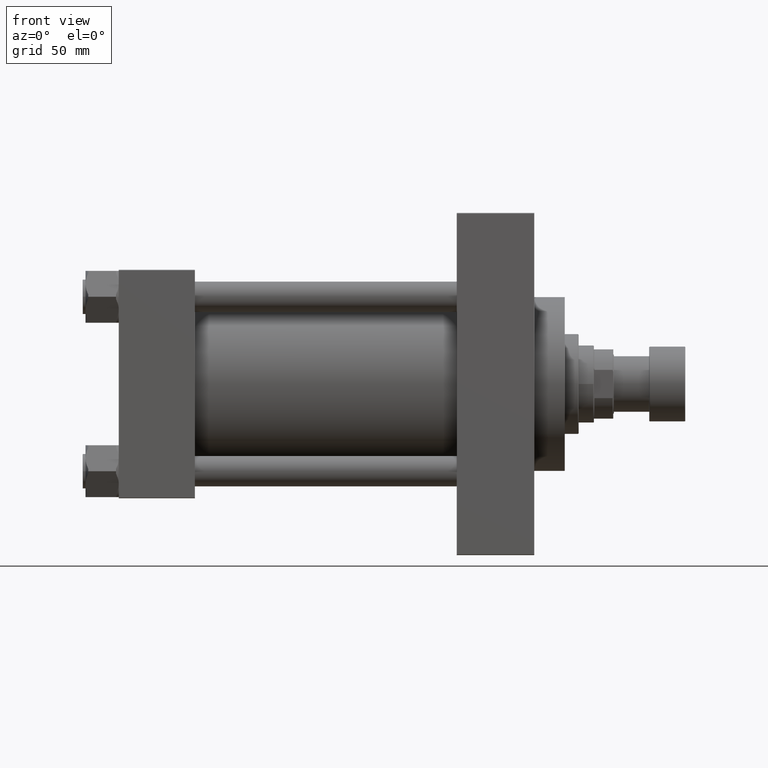
[diagram: clean part render]
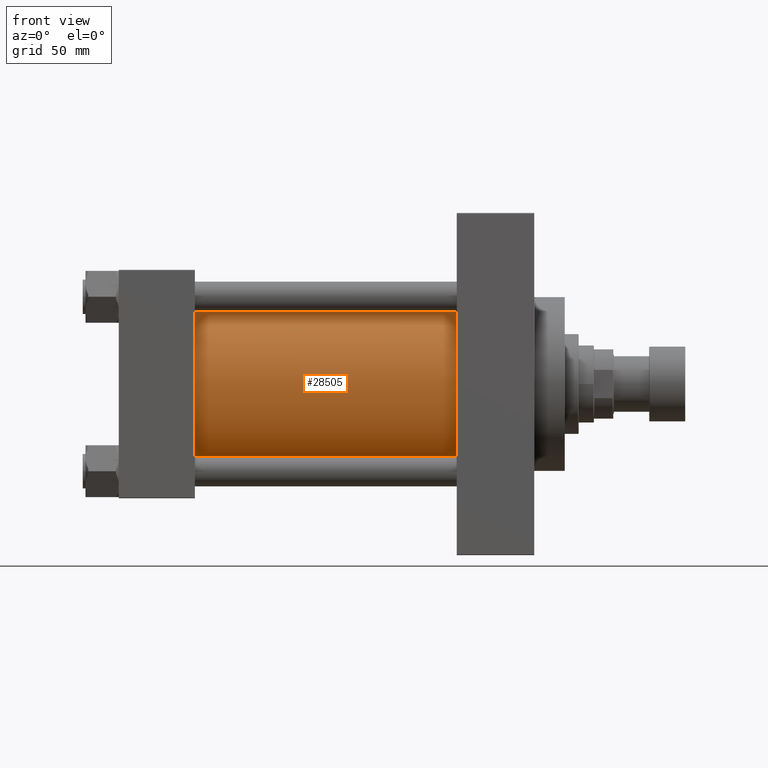
[diagram: same view with one face highlighted and labeled with its STEP entity id]
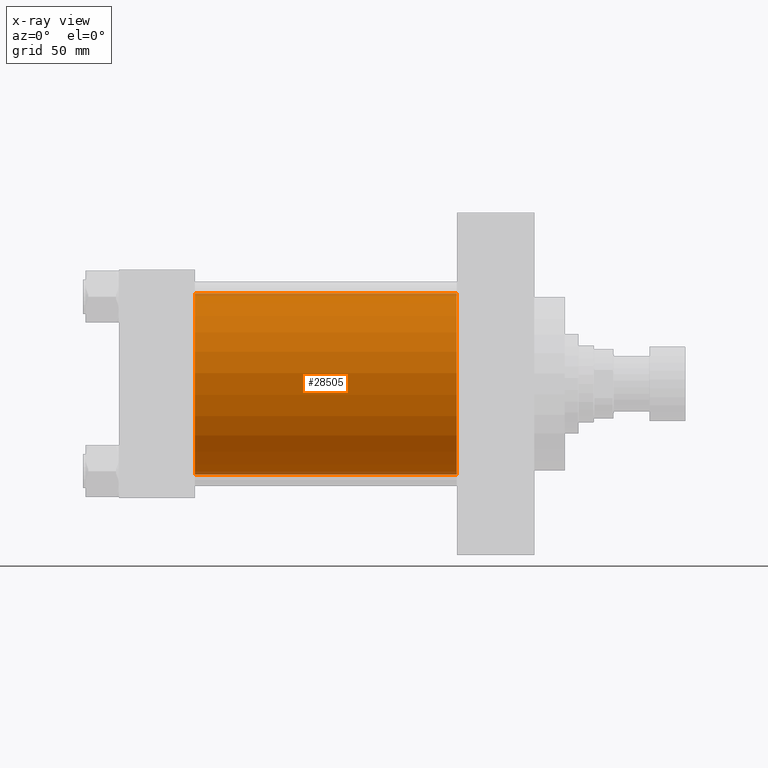
[diagram: x-ray of the same camera — body ghosted, the highlighted face saturated]
A machine part, front view. The second image highlights one B-rep face of the part: STEP entity #28505.
The next image is the same camera in x-ray: the body ghosted, the highlighted face saturated — about 3% of this face is hidden behind the body in this view.
In plain terms, the highlighted cylindrical surface (partial cylindrical patch) has radius 65.5 mm, axis along (-1, -0, -0).
Its self-contained STEP definition (entity closure, byte-faithful):
#2754 = DIRECTION ( 'NONE',  ( -1.000000000000000000, -0.000000000000000000, -0.000000000000000000 ) ) ;
#3321 = CARTESIAN_POINT ( 'NONE',  ( 244.0000000000000000, -2.602085213965210642E-15, 65.50000000000001421 ) ) ;
#3855 = CYLINDRICAL_SURFACE ( 'NONE', #10700, 65.50000000000001421 ) ;
#4285 = CARTESIAN_POINT ( 'NONE',  ( 54.99999999999999289, 5.419351320449954973E-15, -65.50000000000001421 ) ) ;
#5287 = ORIENTED_EDGE ( 'NONE', *, *, #28096, .T. ) ;
#6043 = AXIS2_PLACEMENT_3D ( 'NONE', #45284, #11806, #26706 ) ;
#6310 = VERTEX_POINT ( 'NONE', #33481 ) ;
#10069 = CARTESIAN_POINT ( 'NONE',  ( 244.0000000000000000, 5.419351320449954973E-15, -65.50000000000001421 ) ) ;
#10700 = AXIS2_PLACEMENT_3D ( 'NONE', #40724, #15076, #22878 ) ;
#10703 = CARTESIAN_POINT ( 'NONE',  ( 54.99999999999999289, -2.602085213965210642E-15, 65.50000000000001421 ) ) ;
#11806 = DIRECTION ( 'NONE',  ( 1.000000000000000000, -0.000000000000000000, -0.000000000000000000 ) ) ;
#13869 = VECTOR ( 'NONE', #43150, 1000.000000000000000 ) ;
#15076 = DIRECTION ( 'NONE',  ( -1.000000000000000000, -0.000000000000000000, -0.000000000000000000 ) ) ;
#15611 = CIRCLE ( 'NONE', #27292, 65.50000000000001421 ) ;
#17375 = VECTOR ( 'NONE', #2754, 1000.000000000000000 ) ;
#17729 = LINE ( 'NONE', #3321, #13869 ) ;
#17845 = VERTEX_POINT ( 'NONE', #10703 ) ;
#22878 = DIRECTION ( 'NONE',  ( 0.000000000000000000, 0.000000000000000000, 1.000000000000000000 ) ) ;
#24756 = CARTESIAN_POINT ( 'NONE',  ( 244.0000000000000000, -2.602085213965210642E-15, 65.50000000000001421 ) ) ;
#24854 = EDGE_LOOP ( 'NONE', ( #48208, #42691, #28219, #5287 ) ) ;
#26706 = DIRECTION ( 'NONE',  ( 0.000000000000000000, 0.000000000000000000, 1.000000000000000000 ) ) ;
#27292 = AXIS2_PLACEMENT_3D ( 'NONE', #40139, #32801, #47714 ) ;
#28096 = EDGE_CURVE ( 'NONE', #17845, #40121, #36458, .T. ) ;
#28219 = ORIENTED_EDGE ( 'NONE', *, *, #29564, .T. ) ;
#28505 = ADVANCED_FACE ( 'NONE', ( #36812 ), #3855, .T. ) ;
#29564 = EDGE_CURVE ( 'NONE', #38970, #17845, #17729, .T. ) ;
#32801 = DIRECTION ( 'NONE',  ( 1.000000000000000000, 0.000000000000000000, 0.000000000000000000 ) ) ;
#33481 = CARTESIAN_POINT ( 'NONE',  ( 244.0000000000000000, 5.419351320449954973E-15, -65.50000000000001421 ) ) ;
#34170 = EDGE_CURVE ( 'NONE', #38970, #6310, #15611, .T. ) ;
#36189 = LINE ( 'NONE', #10069, #17375 ) ;
#36458 = CIRCLE ( 'NONE', #6043, 65.50000000000001421 ) ;
#36812 = FACE_OUTER_BOUND ( 'NONE', #24854, .T. ) ;
#37052 = EDGE_CURVE ( 'NONE', #6310, #40121, #36189, .T. ) ;
#38970 = VERTEX_POINT ( 'NONE', #24756 ) ;
#40121 = VERTEX_POINT ( 'NONE', #4285 ) ;
#40139 = CARTESIAN_POINT ( 'NONE',  ( 244.0000000000000000, -2.602085213965210642E-15, 0.000000000000000000 ) ) ;
#40724 = CARTESIAN_POINT ( 'NONE',  ( 244.0000000000000000, -2.602085213965210642E-15, 0.000000000000000000 ) ) ;
#42691 = ORIENTED_EDGE ( 'NONE', *, *, #34170, .F. ) ;
#43150 = DIRECTION ( 'NONE',  ( -1.000000000000000000, -0.000000000000000000, -0.000000000000000000 ) ) ;
#45284 = CARTESIAN_POINT ( 'NONE',  ( 54.99999999999999289, -2.602085213965210642E-15, 0.000000000000000000 ) ) ;
#47714 = DIRECTION ( 'NONE',  ( 0.000000000000000000, 0.000000000000000000, -1.000000000000000000 ) ) ;
#48208 = ORIENTED_EDGE ( 'NONE', *, *, #37052, .F. ) ;